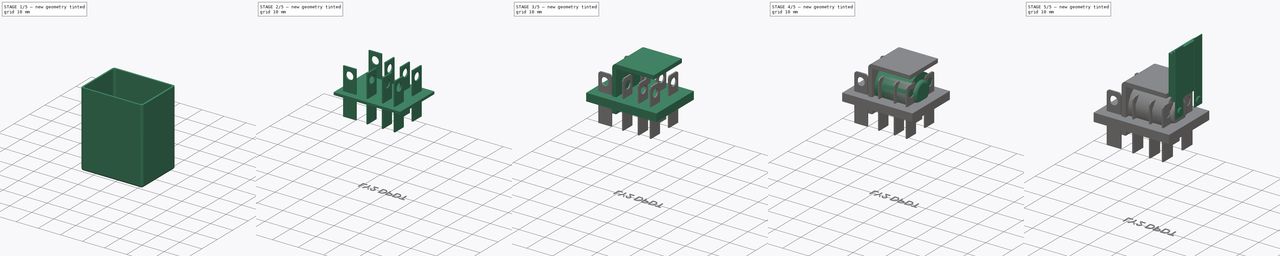
[diagram: build sequence overview — one tinted view per stage of 5, left to right]
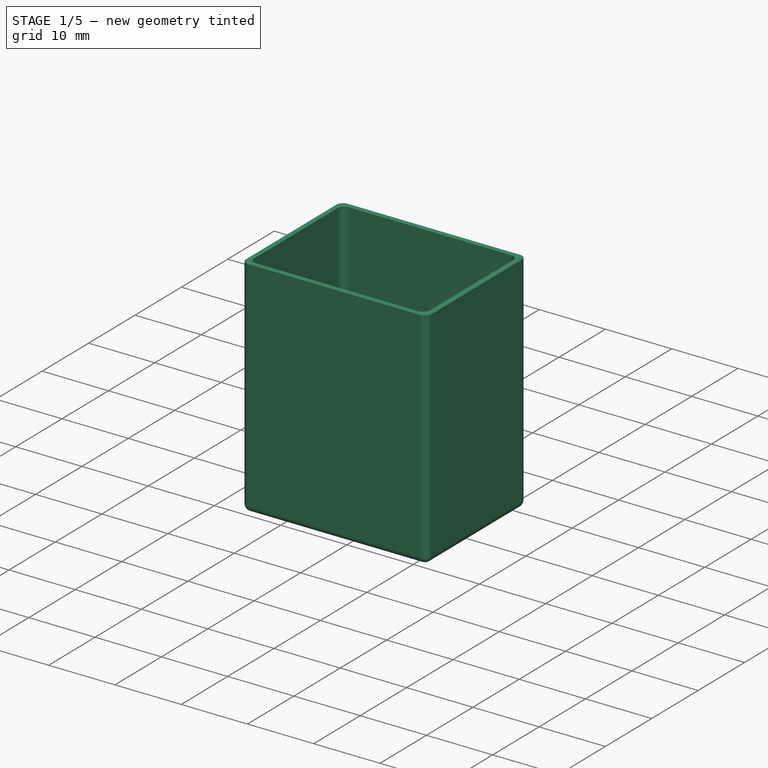
[diagram: stage 1 of 5 — iso view after this stage's code; geometry added in this stage tinted green]
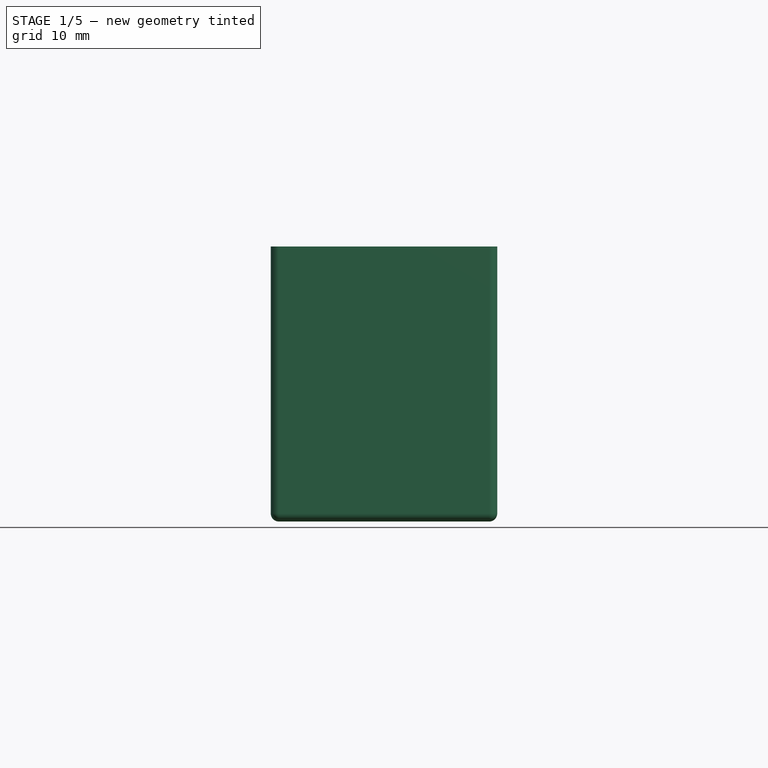
[diagram: stage 1 of 5 — front view after this stage's code; geometry added in this stage tinted green]
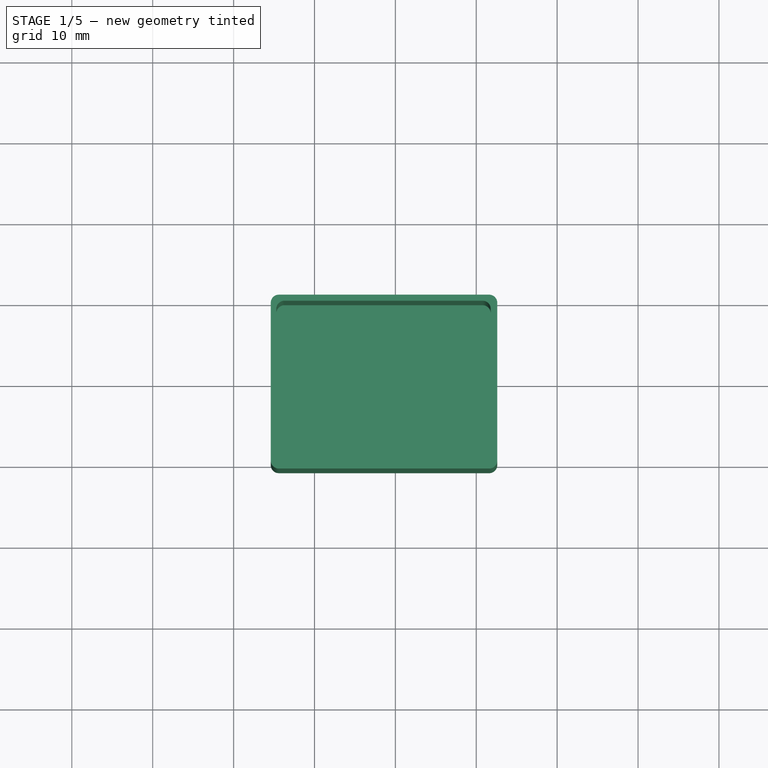
[diagram: stage 1 of 5 — top view after this stage's code; geometry added in this stage tinted green]
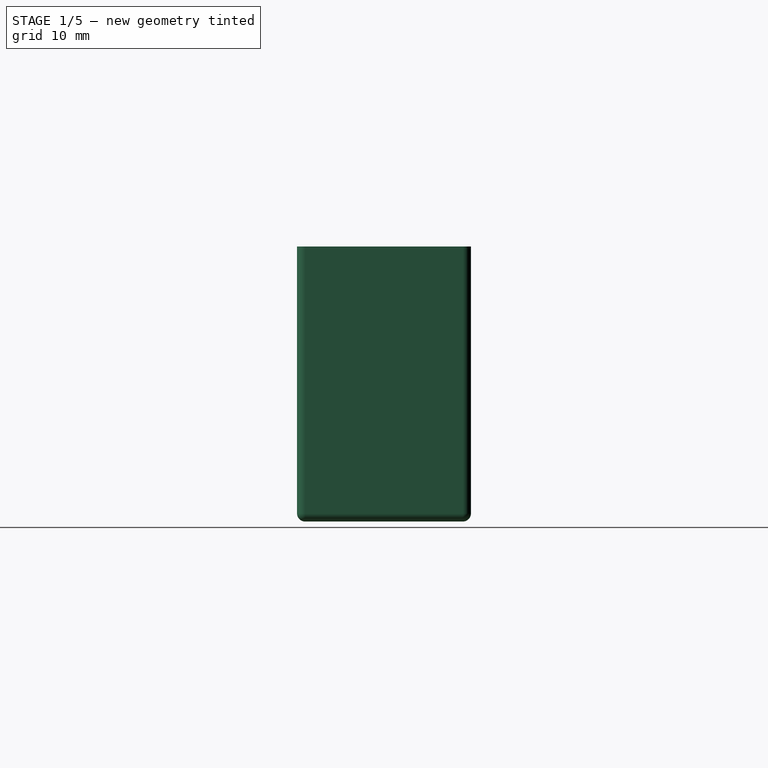
[diagram: stage 1 of 5 — right view after this stage's code; geometry added in this stage tinted green]
FCSTD DOCUMENT  (FreeCAD 0.21R33771 (Git))
Label: Relay_DPDT_LY2
License: All rights reserved
LicenseURL: http://en.wikipedia.org/wiki/All_rights_reserved
objects: Sketcher::SketchObject×16, PartDesign::Pad×11, PartDesign::Fillet×7, PartDesign::Pocket×5, PartDesign::Body×5, PartDesign::ShapeBinder×1, Part::Part2DObjectPython×1, Part::Extrusion×1, App::Part×1
note: 70 computed .brp shape members not serialized (recipe doc carries the construction recipe); baked Part::Feature solids carry a one-line shape summary decoded from their .brp

FEATURE [PartDesign::Body] Body002  label="Bobina"
  Group = -> [ShapeBinder001,Sketch010,Pad005,Sketch011,Pocket005,Sketch012,Pad006,Fillet001,Fillet002,Sketch023,Pad015,Fillet]
  Origin = -> Origin003
  Placement = pos=(-5.74992,0.268518,-11.6) rot=(1,0,0;3.14159rad)
  Tip = -> Fillet
FEATURE [PartDesign::Body] Body004  label="Cover"
  Origin = -> Origin007
  Placement = pos=(0,0,1.9) rot=(0,0,1;0rad)
FEATURE [Sketcher::SketchObject] Sketch024
  FullyConstrained = false
  MapMode = 5
  Support = -> [XY_Plane007]
  sketch-geometry (8):
    g0: LineSegment StartX=-5.40661 StartY=9.75 StartZ=0 EndX=-5.40661 EndY=-9.75 EndZ=0
    g1: LineSegment StartX=-4.40661 StartY=-10.75 StartZ=0 EndX=21.5934 EndY=-10.75 EndZ=0
    g2: LineSegment StartX=22.5934 StartY=9.75 StartZ=0 EndX=22.5934 EndY=-9.75 EndZ=0
    g3: LineSegment StartX=-4.40661 StartY=10.75 StartZ=0 EndX=21.5934 EndY=10.75 EndZ=0
    g4: ArcOfCircle CenterX=-4.40661 CenterY=9.75 CenterZ=0 NormalX=0 NormalY=0 NormalZ=1 AngleXU=0 Radius=1 StartAngle=1.5708 EndAngle=3.14159
    g5: ArcOfCircle CenterX=21.5934 CenterY=9.75 CenterZ=0 NormalX=0 NormalY=0 NormalZ=1 AngleXU=0 Radius=1 StartAngle=1.75125e-11 EndAngle=1.5708
    g6: ArcOfCircle CenterX=21.5934 CenterY=-9.75 CenterZ=0 NormalX=0 NormalY=0 NormalZ=1 AngleXU=0 Radius=1 StartAngle=4.71239 EndAngle=6.28319
    g7: ArcOfCircle CenterX=-4.40661 CenterY=-9.75 CenterZ=0 NormalX=0 NormalY=0 NormalZ=1 AngleXU=0 Radius=1 StartAngle=3.14159 EndAngle=4.71239
  constraints (18):
    c: Vertical(g0)
    c: Horizontal(g1)
    c: Horizontal(g3)
    c: Tangent(g4,g3) = 1.5708
    c: Tangent(g4,g0) = -1.5708
    c: Tangent(g7,g1) = -1.5708
    c: Tangent(g7,g0) = -1.5708
    c: Tangent(g5,g3) = 1.5708
    c: Tangent(g5,g2) = 1.5708
    c: Tangent(g6,g2) = 1.5708
    c: Tangent(g6,g1) = -1.5708
    c: Radius(g5) = 1
    c: Radius(g4) = 1
    c: Radius(g7) = 1
    c: Radius(g6) = 1
    c: DistanceX(g0,g2) = 28
    c: DistanceY(g1,g3) = 21.5
    c: Symmetric(g2,g2,g-1)
FEATURE [PartDesign::Pad] Pad016
  Direction = (0,0,1)
  Length = 34
  Length2 = 10
  Profile = -> Sketch024
  ReferenceAxis = -> Sketch024 [N_Axis]
  Reversed = true
  Type = 0
FEATURE [PartDesign::Fillet] Fillet005
  Base = -> Pad016 [Face10]
  Radius = 1
  SupportTransform = false
  UseAllEdges = false
FEATURE [Sketcher::SketchObject] Sketch025
  FullyConstrained = false
  MapMode = 5
  Support = -> [Fillet005]
  sketch-geometry (8):
    g0: LineSegment StartX=-3.7124 StartY=10 StartZ=0 EndX=20.7876 EndY=10 EndZ=0
    g1: LineSegment StartX=21.7876 StartY=9 StartZ=0 EndX=21.7876 EndY=-9 EndZ=0
    g2: LineSegment StartX=-4.7124 StartY=9 StartZ=0 EndX=-4.7124 EndY=-9 EndZ=0
    g3: LineSegment StartX=-3.7124 StartY=-10 StartZ=0 EndX=20.7876 EndY=-10 EndZ=0
    g4: ArcOfCircle CenterX=-3.7124 CenterY=9 CenterZ=0 NormalX=0 NormalY=0 NormalZ=1 AngleXU=0 Radius=1 StartAngle=1.5708 EndAngle=3.14159
    g5: ArcOfCircle CenterX=20.7876 CenterY=9 CenterZ=0 NormalX=0 NormalY=0 NormalZ=1 AngleXU=0 Radius=1 StartAngle=4e-16 EndAngle=1.5708
    g6: ArcOfCircle CenterX=20.7876 CenterY=-9 CenterZ=0 NormalX=0 NormalY=0 NormalZ=1 AngleXU=0 Radius=1 StartAngle=4.71239 EndAngle=6.28319
    g7: ArcOfCircle CenterX=-3.7124 CenterY=-9 CenterZ=0 NormalX=0 NormalY=0 NormalZ=1 AngleXU=0 Radius=1 StartAngle=3.14159 EndAngle=4.71239
  constraints (18):
    c: Horizontal(g0)
    c: Vertical(g2)
    c: Horizontal(g3)
    c: Tangent(g7,g2) = -1.5708
    c: Tangent(g7,g3) = -1.5708
    c: Tangent(g6,g3) = -1.5708
    c: Tangent(g6,g1) = 1.5708
    c: Tangent(g5,g1) = 1.5708
    c: Tangent(g5,g0) = 1.5708
    c: Tangent(g4,g0) = 1.5708
    c: Tangent(g4,g2) = -1.5708
    c: Radius(g4) = 1
    c: Radius(g5) = 1
    c: Radius(g7) = 1
    c: Radius(g6) = 1
    c: Symmetric(g1,g1,g-1)
    c: DistanceY(g3,g0) = 20
    c: DistanceX(g0,g0) = 24.5
FEATURE [PartDesign::Pocket] Pocket006
  Direction = (0,0,-1)
  Length = 32
  Length2 = 5
  Profile = -> Sketch025
  ReferenceAxis = -> Sketch025 [N_Axis]
  Type = 0
FEATURE [PartDesign::Body] Body  label="Pins"
  Group = -> [Sketch,Sketch021,Pad,Pad014,Sketch022,Pocket,Sketch026,Pocket007,Fillet006]
  Origin = -> Origin
  Placement = pos=(0,0,0.5) rot=(0,0,1;0rad)
  Tip = -> Fillet006
FEATURE [Sketcher::SketchObject] Sketch029
  FullyConstrained = false
  MapMode = 5
  Placement = pos=(0,0,-34) rot=(1,0,0;3.14159rad)
  Support = -> [Pocket006]
  sketch-geometry (4):
    g0: LineSegment StartX=-3.93933 StartY=9.5 StartZ=0 EndX=21.0607 EndY=9.5 EndZ=0
    g1: LineSegment StartX=21.0607 StartY=9.5 StartZ=0 EndX=21.0607 EndY=-9.5 EndZ=0
    g2: LineSegment StartX=21.0607 StartY=-9.5 StartZ=0 EndX=-3.93933 EndY=-9.5 EndZ=0
    g3: LineSegment StartX=-3.93933 StartY=-9.5 StartZ=0 EndX=-3.93933 EndY=9.5 EndZ=0
  constraints (10):
    c: Coincident(g0,g1)
    c: Coincident(g1,g2)
    c: Coincident(g2,g3)
    c: Coincident(g3,g0)
    c: Horizontal(g0)
    c: Horizontal(g2)
    c: Vertical(g3)
    c: DistanceX(g2,g2) = 25
    c: DistanceY(g1,g1) = 19
    c: Symmetric(g0,g1,g-1)
FEATURE [PartDesign::Pocket] Pocket008
  Direction = (0,0,1)
  Length = 0.5
  Length2 = 5
  Profile = -> Sketch029
  ReferenceAxis = -> Sketch029 [N_Axis]
  Type = 0
FEATURE [PartDesign::Fillet] Fillet007
  Base = -> Pocket008 [Face32]
  Radius = 0.3
  SupportTransform = false
  UseAllEdges = false
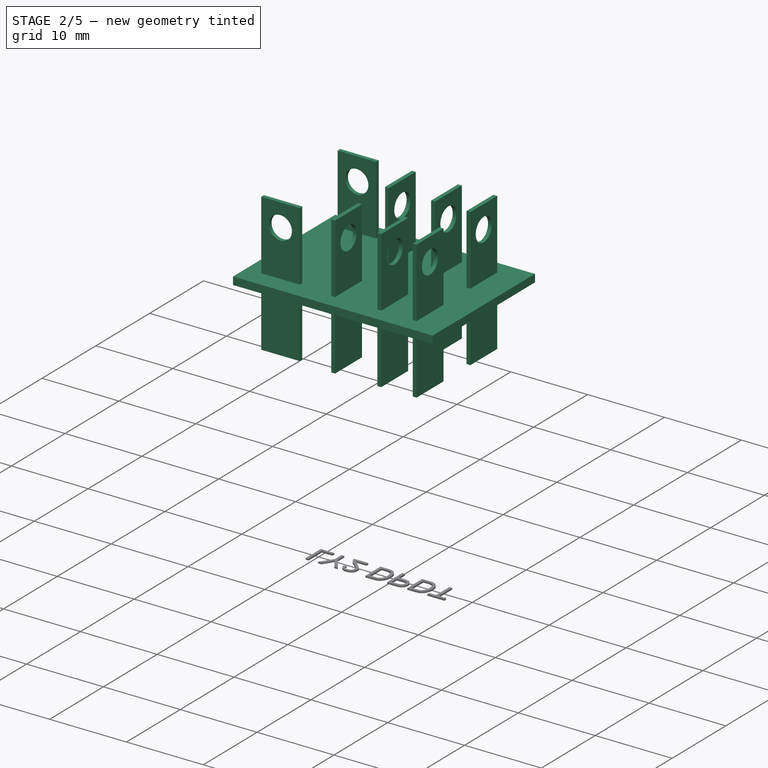
[diagram: stage 2 of 5 — iso view after this stage's code; geometry added in this stage tinted green]
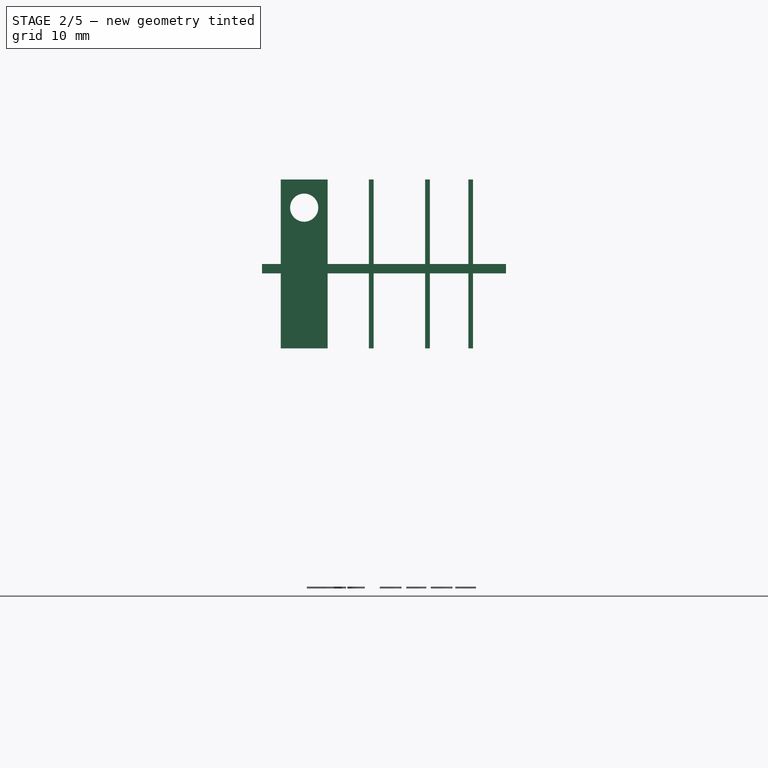
[diagram: stage 2 of 5 — front view after this stage's code; geometry added in this stage tinted green]
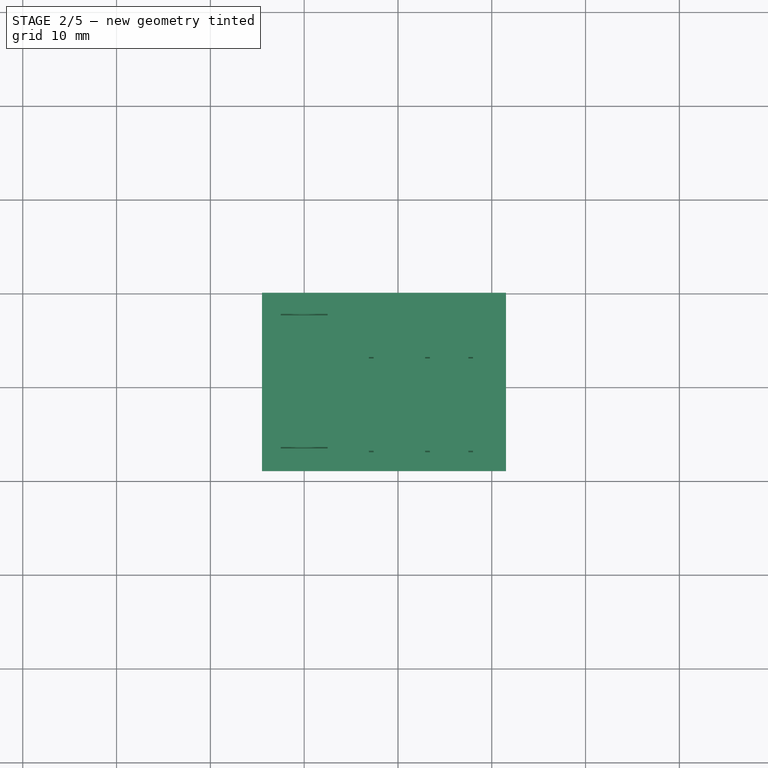
[diagram: stage 2 of 5 — top view after this stage's code; geometry added in this stage tinted green]
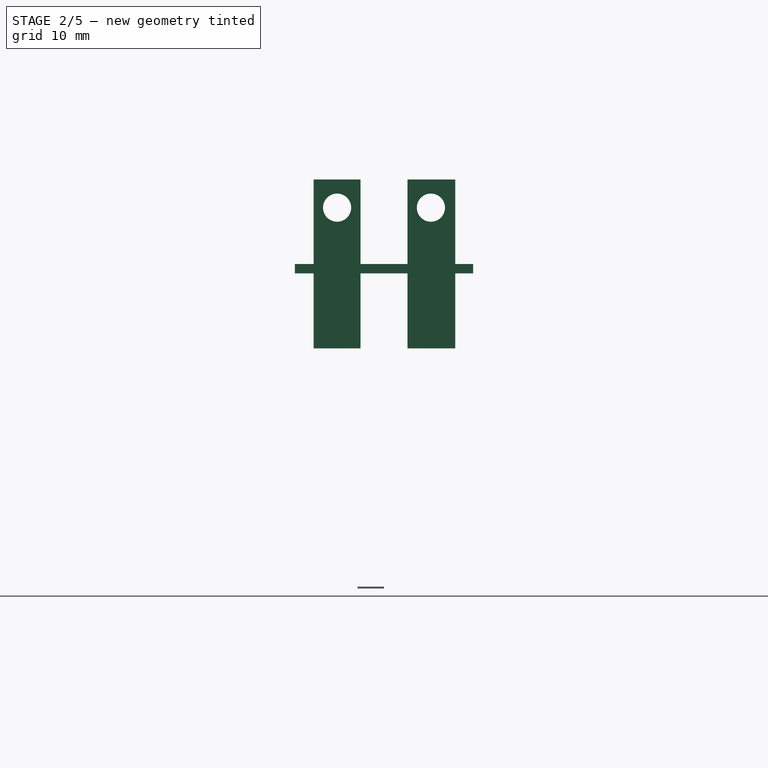
[diagram: stage 2 of 5 — right view after this stage's code; geometry added in this stage tinted green]
FEATURE [PartDesign::Body] Body003  label="Actuador"
  Group = -> [Sketch017,Pad010,Sketch018,Pad011,Sketch019,Pad012,Sketch020,Pad013,Fillet004]
  Origin = -> Origin004
  Placement = pos=(-5.26785,0.127147,3.3) rot=(1,0,0;3.14159rad)
  Tip = -> Fillet004
FEATURE [Sketcher::SketchObject] Sketch021
  FullyConstrained = false
  MapMode = 5
  Support = -> [XY_Plane]
  sketch-geometry (4):
    g0: LineSegment StartX=-4.48888 StartY=9.5 StartZ=0 EndX=21.5111 EndY=9.5 EndZ=0
    g1: LineSegment StartX=21.5111 StartY=9.5 StartZ=0 EndX=21.5111 EndY=-9.5 EndZ=0
    g2: LineSegment StartX=21.5111 StartY=-9.5 StartZ=0 EndX=-4.48888 EndY=-9.5 EndZ=0
    g3: LineSegment StartX=-4.48888 StartY=-9.5 StartZ=0 EndX=-4.48888 EndY=9.5 EndZ=0
  constraints (10):
    c: Coincident(g0,g1)
    c: Coincident(g1,g2)
    c: Coincident(g2,g3)
    c: Coincident(g3,g0)
    c: Horizontal(g0)
    c: Horizontal(g2)
    c: Vertical(g3)
    c: DistanceY(g1,g1) = 19
    c: DistanceX(g0,g0) = 26
    c: Symmetric(g0,g1,g-1)
FEATURE [PartDesign::Pad] Pad
  Direction = (0,0,1)
  Length = 1
  Length2 = 10
  Profile = -> Sketch021
  ReferenceAxis = -> Sketch021 [N_Axis]
  Type = 0
FEATURE [Sketcher::SketchObject] Sketch
  FullyConstrained = true
  MapMode = 5
  Placement = pos=(0,0,1) rot=(0,0,1;0rad)
  Support = -> [Pad]
  sketch-geometry (32):
    g0: LineSegment StartX=-2.5 StartY=7.6 StartZ=0 EndX=2.5 EndY=7.6 EndZ=0
    g1: LineSegment StartX=2.5 StartY=7.6 StartZ=0 EndX=2.5 EndY=7.1 EndZ=0
    g2: LineSegment StartX=2.5 StartY=7.1 StartZ=0 EndX=-2.5 EndY=7.1 EndZ=0
    g3: LineSegment StartX=-2.5 StartY=7.1 StartZ=0 EndX=-2.5 EndY=7.6 EndZ=0
    g4: LineSegment StartX=-2.5 StartY=-7.1 StartZ=0 EndX=2.5 EndY=-7.1 EndZ=0
    g5: LineSegment StartX=2.5 StartY=-7.1 StartZ=0 EndX=2.5 EndY=-6.6 EndZ=0
    g6: LineSegment StartX=2.5 StartY=-6.6 StartZ=0 EndX=-2.5 EndY=-6.6 EndZ=0
    g7: LineSegment StartX=-2.5 StartY=-7.1 StartZ=0 EndX=-2.5 EndY=-6.6 EndZ=0
    g8: LineSegment StartX=6.9 StartY=7.5 StartZ=0 EndX=7.4 EndY=7.5 EndZ=0
    g9: LineSegment StartX=7.4 StartY=7.5 StartZ=0 EndX=7.4 EndY=2.5 EndZ=0
    g10: LineSegment StartX=7.4 StartY=2.5 StartZ=0 EndX=6.9 EndY=2.5 EndZ=0
    g11: LineSegment StartX=6.9 StartY=2.5 StartZ=0 EndX=6.9 EndY=7.5 EndZ=0
    g12: LineSegment StartX=12.9 StartY=7.5 StartZ=0 EndX=13.4 EndY=7.5 EndZ=0
    g13: LineSegment StartX=13.4 StartY=7.5 StartZ=0 EndX=13.4 EndY=2.5 EndZ=0
    g14: LineSegment StartX=13.4 StartY=2.5 StartZ=0 EndX=12.9 EndY=2.5 EndZ=0
    g15: LineSegment StartX=12.9 StartY=2.5 StartZ=0 EndX=12.9 EndY=7.5 EndZ=0
    g16: LineSegment StartX=18 StartY=7.5 StartZ=0 EndX=17.5 EndY=7.5 EndZ=0
    g17: LineSegment StartX=17.5 StartY=7.5 StartZ=0 EndX=17.5 EndY=2.5 EndZ=0
    g18: LineSegment StartX=17.5 StartY=2.5 StartZ=0 EndX=18 EndY=2.5 EndZ=0
    g19: LineSegment StartX=18 StartY=2.5 StartZ=0 EndX=18 EndY=7.5 EndZ=0
    g20: LineSegment StartX=6.9 StartY=-2.5 StartZ=0 EndX=7.4 EndY=-2.5 EndZ=0
    g21: LineSegment StartX=7.4 StartY=-2.5 StartZ=0 EndX=7.4 EndY=-7.5 EndZ=0
    g22: LineSegment StartX=7.4 StartY=-7.5 StartZ=0 EndX=6.9 EndY=-7.5 EndZ=0
    g23: LineSegment StartX=6.9 StartY=-7.5 StartZ=0 EndX=6.9 EndY=-2.5 EndZ=0
    g24: LineSegment StartX=12.9 StartY=-2.5 StartZ=0 EndX=13.4 EndY=-2.5 EndZ=0
    g25: LineSegment StartX=13.4 StartY=-2.5 StartZ=0 EndX=13.4 EndY=-7.5 EndZ=0
    g26: LineSegment StartX=13.4 StartY=-7.5 StartZ=0 EndX=12.9 EndY=-7.5 EndZ=0
    g27: LineSegment StartX=12.9 StartY=-7.5 StartZ=0 EndX=12.9 EndY=-2.5 EndZ=0
    g28: LineSegment StartX=17.5 StartY=-2.5 StartZ=0 EndX=18 EndY=-2.5 EndZ=0
    g29: LineSegment StartX=18 StartY=-2.5 StartZ=0 EndX=18 EndY=-7.5 EndZ=0
    g30: LineSegment StartX=18 StartY=-7.5 StartZ=0 EndX=17.5 EndY=-7.5 EndZ=0
    g31: LineSegment StartX=17.5 StartY=-7.5 StartZ=0 EndX=17.5 EndY=-2.5 EndZ=0
  constraints (96):
    c: Horizontal(g0)
    c: Coincident(g1,g0)
    c: Coincident(g2,g1)
    c: Horizontal(g2)
    c: Coincident(g3,g0)
    c: Vertical(g3)
    c: Vertical(g1)
    c: DistanceX(g0,g0) = 5
    c: Coincident(g2,g3)
    c: DistanceY(g1,g1) = 0.5
    c: DistanceX(g2) = -2.5
    c: DistanceY(g2) = 7.1
    c: Horizontal(g4)
    c: Coincident(g5,g4)
    c: Vertical(g5)
    c: Coincident(g6,g5)
    c: Horizontal(g6)
    c: Coincident(g7,g4)
    c: Coincident(g7,g6)
    c: Vertical(g7)
    c: Equal(g2,g4)
    c: Equal(g7,g3)
    c: DistanceX(g4) = -2.5
    c: DistanceY(g4) = -7.1
    c: Coincident(g9,g10)
    c: Coincident(g10,g11)
    c: Horizontal(g8)
    c: Horizontal(g10)
    c: Vertical(g9)
    c: Vertical(g11)
    c: Coincident(g12,g13)
    c: Coincident(g13,g14)
    c: Coincident(g14,g15)
    c: Coincident(g15,g12)
    c: Horizontal(g12)
    c: Horizontal(g14)
    c: Vertical(g13)
    c: Vertical(g15)
    c: Coincident(g16,g17)
    c: Coincident(g17,g18)
    c: Coincident(g18,g19)
    c: Coincident(g19,g16)
    c: Horizontal(g16)
    c: Horizontal(g18)
    c: Vertical(g17)
    c: Vertical(g19)
    c: Coincident(g20,g21)
    c: Coincident(g21,g22)
    c: Coincident(g22,g23)
    c: Coincident(g23,g20)
    c: Horizontal(g20)
    c: Horizontal(g22)
    c: Vertical(g21)
    c: Vertical(g23)
    c: Coincident(g24,g25)
    c: Coincident(g25,g26)
    c: Coincident(g26,g27)
    c: Coincident(g27,g24)
    c: Horizontal(g24)
    c: Horizontal(g26)
    c: Vertical(g25)
    c: Vertical(g27)
    c: Coincident(g28,g29)
    c: Coincident(g29,g30)
    c: Coincident(g30,g31)
    c: Coincident(g31,g28)
    c: Horizontal(g28)
    c: Horizontal(g30)
    c: Vertical(g29)
    c: Vertical(g31)
    c: Equal(g2,g11)
    c: Equal(g2,g15)
    c: Equal(g2,g19)
    c: Equal(g2,g23)
    c: Equal(g2,g27)
    c: Equal(g2,g31)
    c: Equal(g3,g8)
    c: Equal(g3,g12)
    c: Equal(g3,g16)
    c: Equal(g3,g20)
    c: Equal(g3,g24)
    c: Equal(g3,g28)
    c: DistanceX(g8) = 6.9
    c: DistanceY(g8) = 7.5
    c: Coincident(g11,g8)
    c: Coincident(g9,g8)
    c: DistanceX(g22) = 6.9
    c: DistanceY(g22) = -7.5
    c: DistanceX(g8,g12) = 6
    c: DistanceY(g12) = 7.5
    c: DistanceX(g12,g16) = 4.6
    c: DistanceY(g16) = 7.5
    c: DistanceY(g26) = -7.5
    c: DistanceX(g22,g26) = 6
    c: DistanceY(g30) = -7.5
    c: DistanceX(g26,g30) = 4.6
FEATURE [PartDesign::Pad] Pad014
  BaseFeature = -> Pad
  Direction = (0,0,1)
  Length = 18
  Length2 = 10
  Midplane = true
  Profile = -> Sketch
  ReferenceAxis = -> Sketch [N_Axis]
  Type = 0
FEATURE [Sketcher::SketchObject] Sketch022
  FullyConstrained = true
  MapMode = 5
  Placement = pos=(18,0,0) rot=(0.57735,0.57735,0.57735;2.0944rad)
  sketch-geometry (2):
    g0: Circle CenterX=-5 CenterY=7 CenterZ=0 NormalX=0 NormalY=0 NormalZ=1 AngleXU=0 Radius=1.5
    g1: Circle CenterX=5 CenterY=7 CenterZ=0 NormalX=0 NormalY=0 NormalZ=1 AngleXU=0 Radius=1.5
  constraints (5):
    c: Radius(g1) = 1.5
    c: Radius(g0) = 1.5
    c: Symmetric(g0,g1,g-2)
    c: DistanceX(g0) = -5
    c: DistanceY(g0) = 7
FEATURE [PartDesign::Pocket] Pocket
  BaseFeature = -> Pad014
  Direction = (-1,0,0)
  Length = 20
  Length2 = 5
  Profile = -> Sketch022
  ReferenceAxis = -> Sketch022 [N_Axis]
  Type = 0
FEATURE [Sketcher::SketchObject] Sketch026
  FullyConstrained = true
  MapMode = 5
  Placement = pos=(0,-7.1,0) rot=(1,0,0;1.5708rad)
  Support = -> [Pocket]
  sketch-geometry (1):
    g0: Circle CenterX=0 CenterY=7 CenterZ=0 NormalX=0 NormalY=0 NormalZ=1 AngleXU=0 Radius=1.5
  constraints (3):
    c: PointOnObject(g0,g-2)
    c: Radius(g0) = 1.5
    c: DistanceY(g0) = 7
FEATURE [PartDesign::Pocket] Pocket007
  BaseFeature = -> Pocket
  Direction = (0,1,-2e-16)
  Length = 20
  Length2 = 5
  Profile = -> Sketch026
  ReferenceAxis = -> Sketch026 [N_Axis]
  Type = 0
FEATURE [Part::Part2DObjectPython] ShapeString  # Draft 2D object (typed FeaturePython)
  FontFile = <path>
  MakeFace = true
  MapMode = 5
  Placement = pos=(0,0,-33.5) rot=(1,0,0;3.14159rad)
  Size = 3
  String = LY2 DPDT
  Support = -> [Fillet007]
  Tracking = 0
FEATURE [Part::Extrusion] Extrude
  Base = -> ShapeString
  Dir = (0,0,-1)
  DirMode = 2
  FaceMakerClass = Part::FaceMakerBullseye
  LengthFwd = 0.2
  LengthRev = 0
  Placement = pos=(0,0,0.1) rot=(0,0,1;0rad)
  Solid = false
  Symmetric = false
FEATURE [App::Part] Part001  label="RelayLY2"
  Group = -> [Body002,Body003,Body,Body004,Body005,ShapeString,Sketch024,Pad016,Fillet005,Sketch025,Pocket006,Pocket008,Sketch029,Fillet007,Extrude]
  Origin = -> Origin006
  Placement = pos=(0,0,0) rot=(1,0,0;3.14159rad)
note: 1 file-system path scrubbed to <path> (originals preserved in the JSON sidecar)
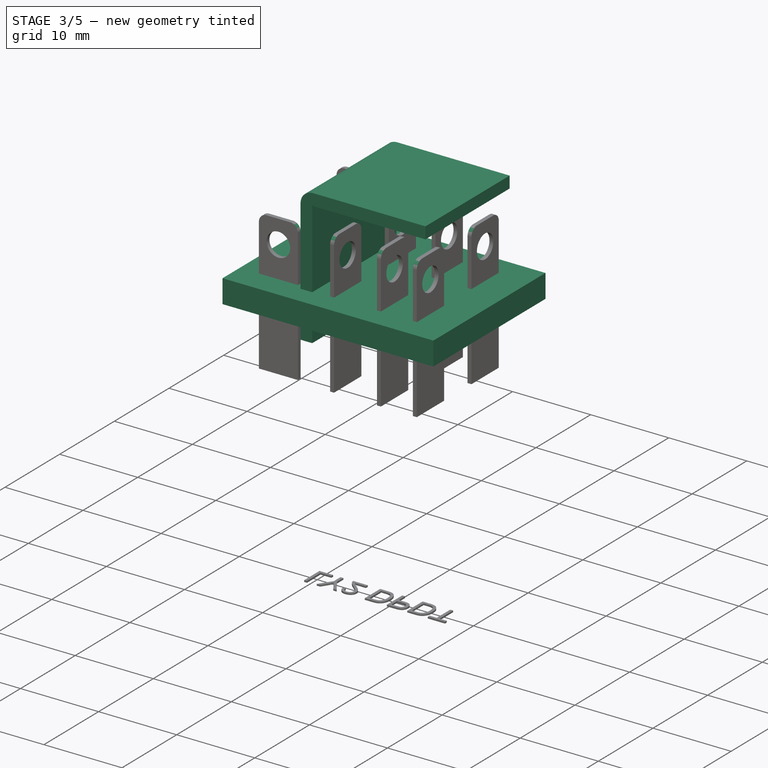
[diagram: stage 3 of 5 — iso view after this stage's code; geometry added in this stage tinted green]
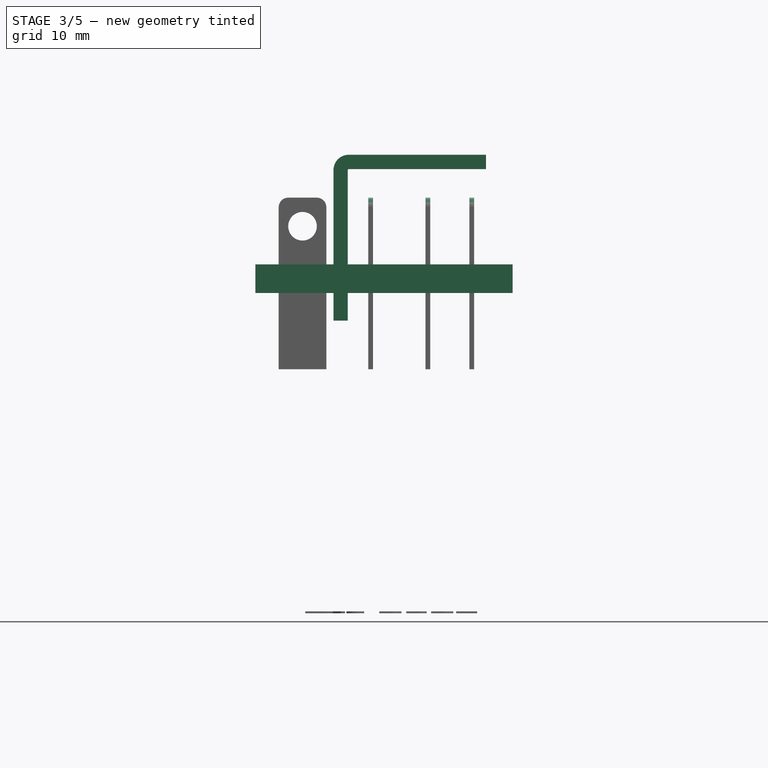
[diagram: stage 3 of 5 — front view after this stage's code; geometry added in this stage tinted green]
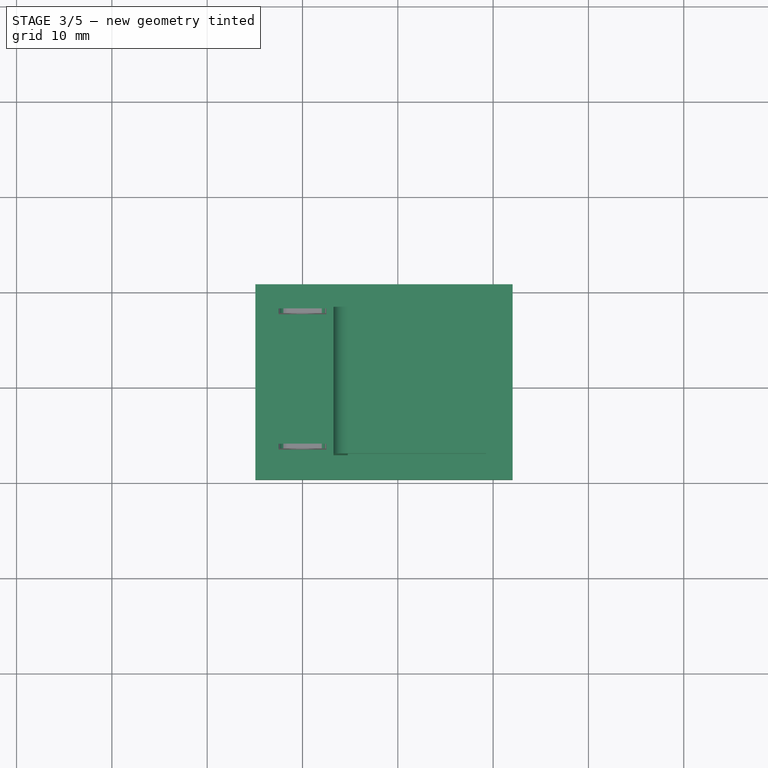
[diagram: stage 3 of 5 — top view after this stage's code; geometry added in this stage tinted green]
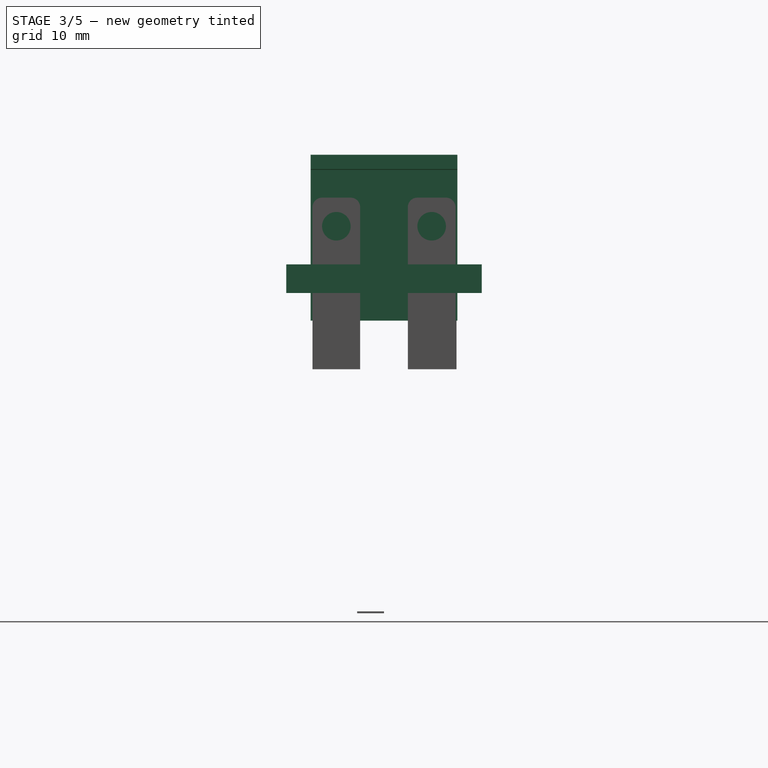
[diagram: stage 3 of 5 — right view after this stage's code; geometry added in this stage tinted green]
FEATURE [Sketcher::SketchObject] Sketch010
  FullyConstrained = false
  MapMode = 5
  Placement = pos=(0,0,0) rot=(1,0,0;1.5708rad)
  Support = -> [XZ_Plane003]
  sketch-geometry (8):
    g0: LineSegment StartX=3.25 StartY=-7.9 StartZ=0 EndX=3.25 EndY=12.9 EndZ=0
    g1: LineSegment StartX=4.85 StartY=14.5 StartZ=0 EndX=19.25 EndY=14.5 EndZ=0
    g2: LineSegment StartX=19.25 StartY=14.5 StartZ=0 EndX=19.25 EndY=13 EndZ=0
    g3: LineSegment StartX=19.25 StartY=13 StartZ=0 EndX=4.85 EndY=13 EndZ=0
    g4: LineSegment StartX=4.75 StartY=12.9 StartZ=0 EndX=4.75 EndY=-7.9 EndZ=0
    g5: LineSegment StartX=4.75 StartY=-7.9 StartZ=0 EndX=3.25 EndY=-7.9 EndZ=0
    g6: ArcOfCircle CenterX=4.85 CenterY=12.9 CenterZ=0 NormalX=0 NormalY=0 NormalZ=1 AngleXU=0 Radius=1.6 StartAngle=1.5708 EndAngle=3.14159
    g7: ArcOfCircle CenterX=4.85 CenterY=12.9 CenterZ=0 NormalX=0 NormalY=0 NormalZ=1 AngleXU=0 Radius=0.1 StartAngle=1.5708 EndAngle=3.14159
  constraints (19):
    c: Vertical(g0)
    c: Horizontal(g1)
    c: Coincident(g1,g2)
    c: Coincident(g2,g3)
    c: Horizontal(g3)
    c: Vertical(g4)
    c: Coincident(g4,g5)
    c: Coincident(g5,g0)
    c: Horizontal(g5)
    c: DistanceX(g5,g5) = 1.5
    c: Tangent(g1,g6) = 1.5708
    c: Tangent(g0,g6) = 1.5708
    c: Tangent(g3,g7) = -1.5708
    c: Tangent(g4,g7) = -1.5708
    c: Vertical(g2)
    c: DistanceY(g2,g2) = 1.5
    c: Vertical(g3,g1)
    c: DistanceX(g0,g1) = 16
    c: Radius(g6) = 1.6
FEATURE [PartDesign::Pad] Pad005
  Direction = (0,-1,-2e-16)
  Length = 15.4
  Length2 = 10
  Midplane = true
  Placement = pos=(0,0,0) rot=(1,0,0;1.5708rad)
  Profile = -> Sketch010
  ReferenceAxis = -> Sketch010 [N_Axis]
  Refine = true
  Type = 0
FEATURE [Sketcher::SketchObject] Sketch011
  ExternalGeometry = -> [Pad005]
  FullyConstrained = true
  MapMode = 5
  Placement = pos=(3.25,0,0) rot=(0.707107,0,-0.707107;3.14159rad)
  Support = -> [Pad005]
  sketch-geometry (4):
    g0: LineSegment StartX=7.9 StartY=8 StartZ=0 EndX=2.9 EndY=8 EndZ=0
    g1: LineSegment StartX=2.9 StartY=8 StartZ=0 EndX=2.9 EndY=-8 EndZ=0
    g2: LineSegment StartX=2.9 StartY=-8 StartZ=0 EndX=7.9 EndY=-8 EndZ=0
    g3: LineSegment StartX=7.9 StartY=-8 StartZ=0 EndX=7.9 EndY=8 EndZ=0
  constraints (11):
    c: Coincident(g0,g1)
    c: Coincident(g1,g2)
    c: Coincident(g2,g3)
    c: Coincident(g3,g0)
    c: Horizontal(g0)
    c: Horizontal(g2)
    c: Vertical(g1)
    c: PointOnObject(g0,g-3)
    c: Symmetric(g0,g2,g-1)
    c: DistanceY(g3,g3) = 16
    c: DistanceX(g0,g0) = 5
FEATURE [PartDesign::Pocket] Pocket005
  BaseFeature = -> Pad005
  Direction = (1,0,2e-16)
  Length = 5
  Length2 = 5
  Placement = pos=(0,0,0) rot=(1,0,0;1.5708rad)
  Profile = -> Sketch011
  ReferenceAxis = -> Sketch011 [N_Axis]
  Refine = true
  Type = 0
FEATURE [Sketcher::SketchObject] Sketch028
  FullyConstrained = false
  MapMode = 5
  Support = -> [XY_Plane008]
  sketch-geometry (4):
    g0: LineSegment StartX=-4.95073 StartY=10.25 StartZ=0 EndX=22.0493 EndY=10.25 EndZ=0
    g1: LineSegment StartX=22.0493 StartY=10.25 StartZ=0 EndX=22.0493 EndY=-10.25 EndZ=0
    g2: LineSegment StartX=22.0493 StartY=-10.25 StartZ=0 EndX=-4.95073 EndY=-10.25 EndZ=0
    g3: LineSegment StartX=-4.95073 StartY=-10.25 StartZ=0 EndX=-4.95073 EndY=10.25 EndZ=0
  constraints (10):
    c: Coincident(g0,g1)
    c: Coincident(g1,g2)
    c: Coincident(g2,g3)
    c: Coincident(g3,g0)
    c: Horizontal(g0)
    c: Horizontal(g2)
    c: Vertical(g3)
    c: DistanceY(g1,g1) = 20.5
    c: DistanceX(g0,g0) = 27
    c: Symmetric(g0,g1,g-1)
FEATURE [PartDesign::Pad] Pad017
  Direction = (0,0,1)
  Length = 3
  Length2 = 10
  Profile = -> Sketch028
  ReferenceAxis = -> Sketch028 [N_Axis]
  Type = 0
FEATURE [PartDesign::Body] Body005  label="Base"
  Group = -> [Sketch028,Pad017]
  Origin = -> Origin008
  Tip = -> Pad017
FEATURE [PartDesign::Fillet] Fillet006
  Base = -> Pocket007 [Edge147,Edge142,Edge157,Edge152,Edge192,Edge197,Edge190,Edge185,Edge167,Edge162,Edge207,Edge202,Edge177,Edge172,Edge216,Edge220]
  BaseFeature = -> Pocket007
  Radius = 1
  SupportTransform = false
  UseAllEdges = false
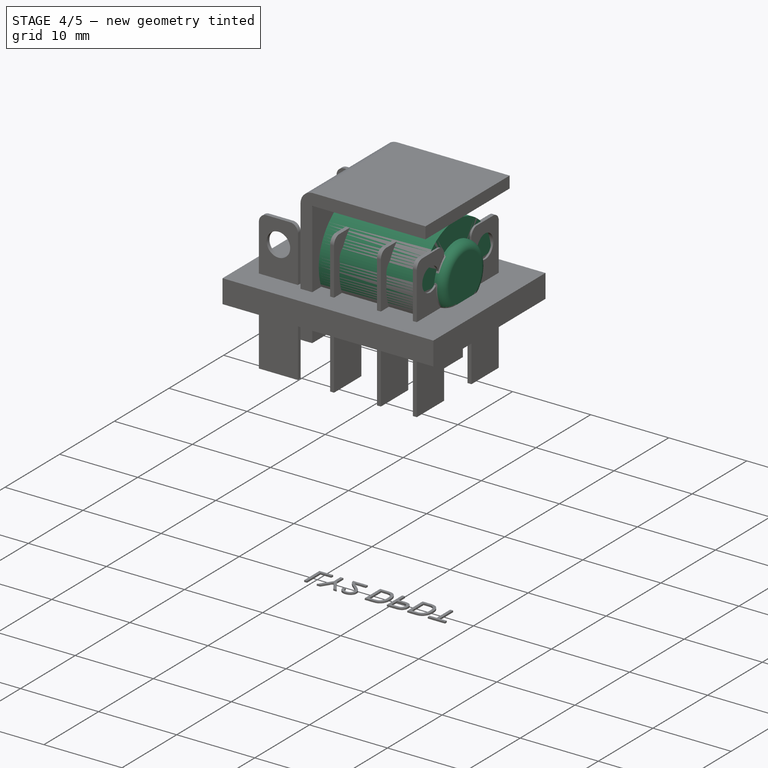
[diagram: stage 4 of 5 — iso view after this stage's code; geometry added in this stage tinted green]
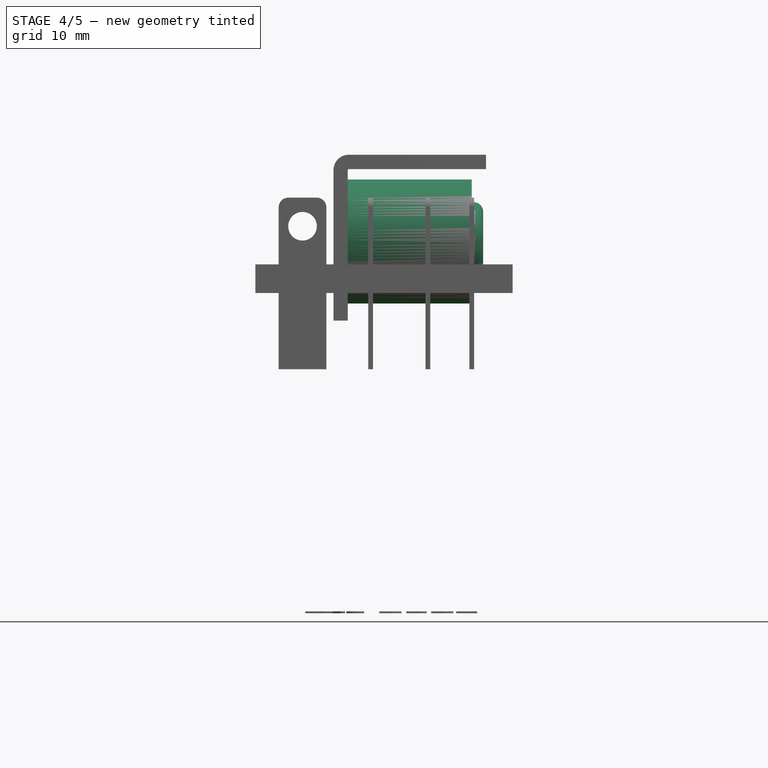
[diagram: stage 4 of 5 — front view after this stage's code; geometry added in this stage tinted green]
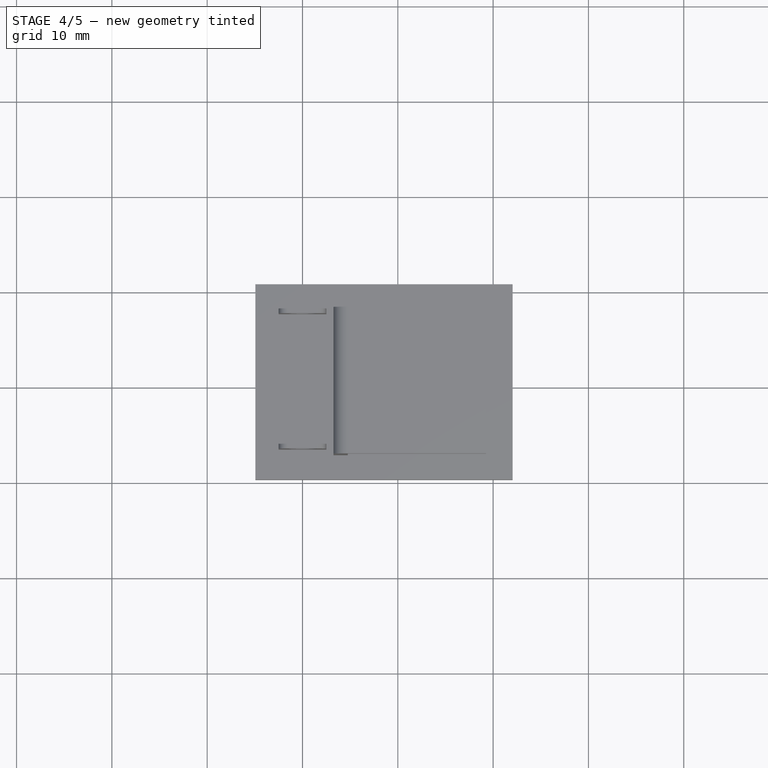
[diagram: stage 4 of 5 — top view after this stage's code; geometry added in this stage tinted green]
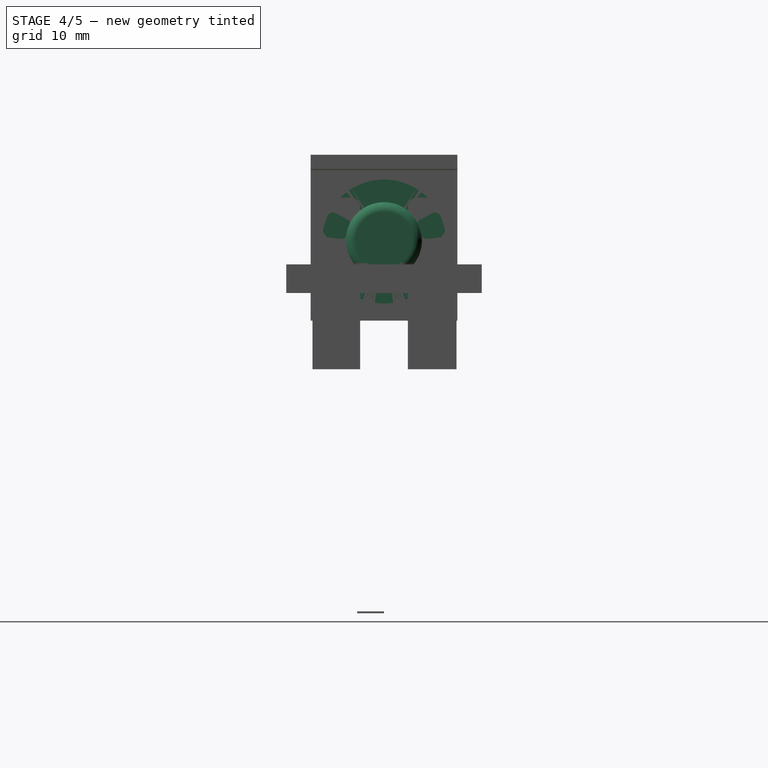
[diagram: stage 4 of 5 — right view after this stage's code; geometry added in this stage tinted green]
FEATURE [Sketcher::SketchObject] Sketch012
  FullyConstrained = false
  MapMode = 5
  Placement = pos=(4.75,0,0) rot=(0.707107,0,0.707107;3.14159rad)
  Support = -> [Pocket005]
  sketch-geometry (1):
    g0: Circle CenterX=5.4 CenterY=0 CenterZ=0 NormalX=0 NormalY=0 NormalZ=1 AngleXU=0 Radius=6.5
  constraints (2):
    c: PointOnObject(g0,g-1)
    c: Diameter(g0) = 13
FEATURE [PartDesign::Pad] Pad006
  BaseFeature = -> Pocket005
  Direction = (1,0,-2e-16)
  Length = 13
  Length2 = 10
  Placement = pos=(0,0,0) rot=(1,0,0;1.5708rad)
  Profile = -> Sketch012
  ReferenceAxis = -> Sketch012 [N_Axis]
  Refine = true
  Type = 0
FEATURE [PartDesign::Fillet] Fillet001
  Base = -> Pad006
  BaseFeature = -> Pad006
  Placement = pos=(0,0,0) rot=(1,0,0;1.5708rad)
  Radius = 0.5
  Refine = true
  SupportTransform = false
  UseAllEdges = false
FEATURE [PartDesign::Fillet] Fillet002
  Base = -> Fillet001
  BaseFeature = -> Fillet001
  Placement = pos=(0,0,0) rot=(1,0,0;1.5708rad)
  Radius = 1
  Refine = true
  SupportTransform = false
  UseAllEdges = false
FEATURE [Sketcher::SketchObject] Sketch023
  FullyConstrained = false
  MapMode = 5
  Placement = pos=(17.75,0,-3.2e-15) rot=(0.707107,0,0.707107;3.14159rad)
  Support = -> [Fillet002]
  sketch-geometry (1):
    g0: Circle CenterX=5.52607 CenterY=0 CenterZ=0 NormalX=0 NormalY=0 NormalZ=1 AngleXU=0 Radius=4
  constraints (2):
    c: PointOnObject(g0,g-1)
    c: Radius(g0) = 4
FEATURE [PartDesign::Pad] Pad015
  BaseFeature = -> Fillet002
  Direction = (1,0,-2e-16)
  Length = 1.2
  Length2 = 10
  Placement = pos=(0,0,0) rot=(1,0,0;1.5708rad)
  Profile = -> Sketch023
  ReferenceAxis = -> Sketch023 [N_Axis]
  Type = 0
FEATURE [PartDesign::Fillet] Fillet
  Base = -> Pad015 [Face14]
  BaseFeature = -> Pad015
  Placement = pos=(0,0,0) rot=(1,0,0;1.5708rad)
  Radius = 1
  SupportTransform = false
  UseAllEdges = false
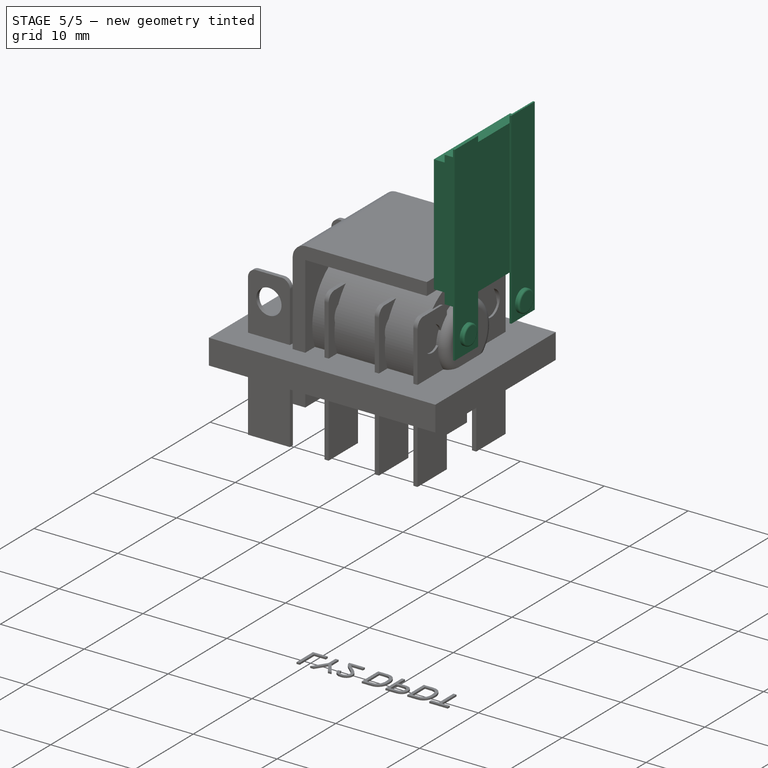
[diagram: stage 5 of 5 — iso view after this stage's code; geometry added in this stage tinted green]
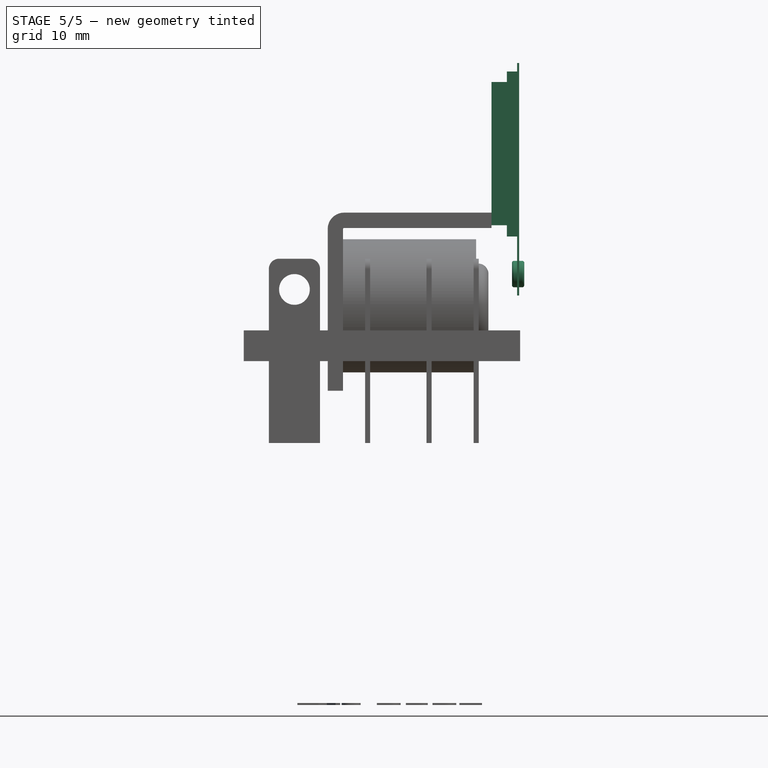
[diagram: stage 5 of 5 — front view after this stage's code; geometry added in this stage tinted green]
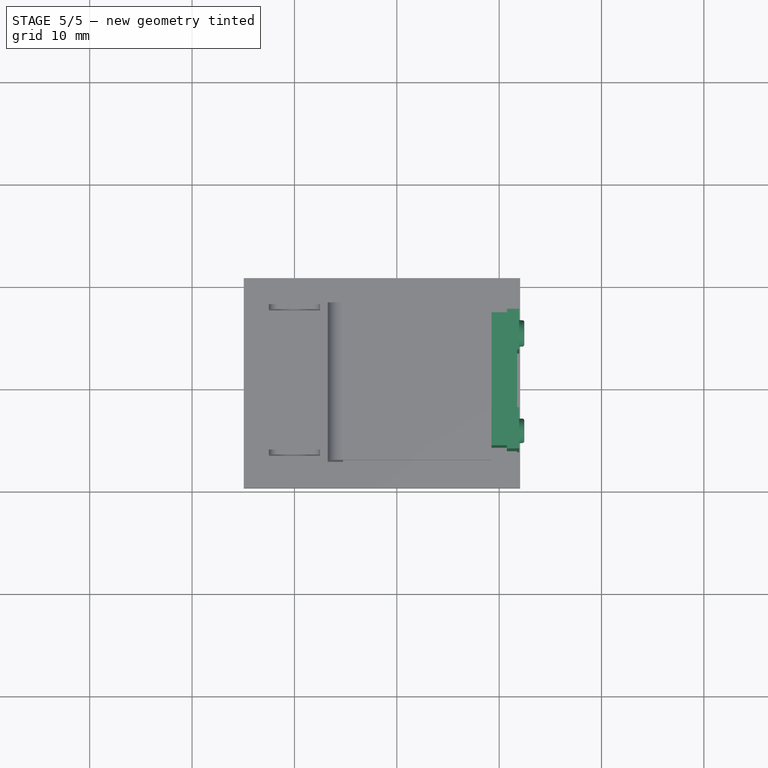
[diagram: stage 5 of 5 — top view after this stage's code; geometry added in this stage tinted green]
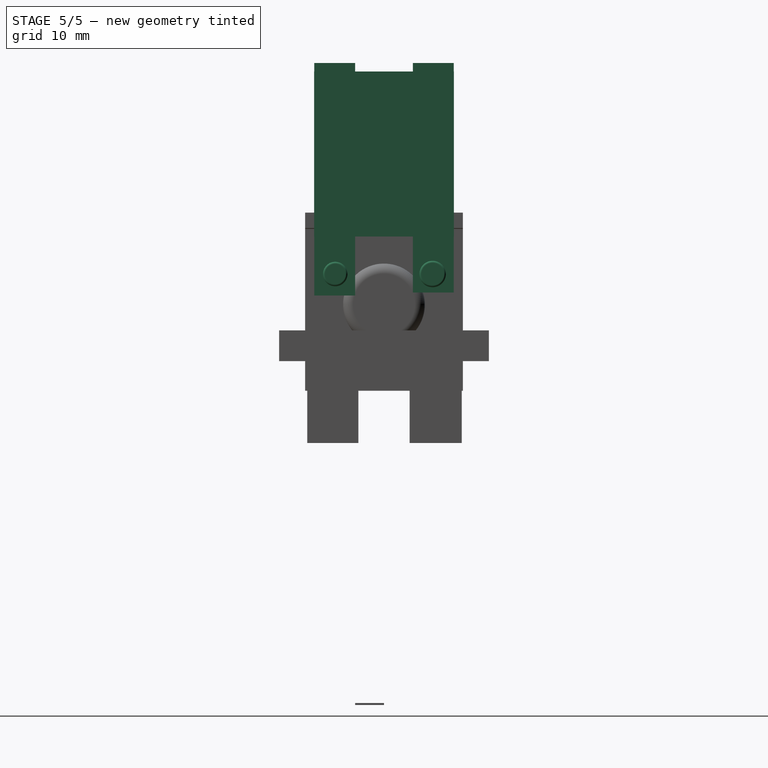
[diagram: stage 5 of 5 — right view after this stage's code; geometry added in this stage tinted green]
FEATURE [PartDesign::ShapeBinder] ShapeBinder001
  TraceSupport = false
FEATURE [Sketcher::SketchObject] Sketch017
  FullyConstrained = false
  MapMode = 5
  Placement = pos=(19.25,0,0) rot=(0.707107,0,0.707107;3.14159rad)
  sketch-geometry (4):
    g0: LineSegment StartX=27.2703 StartY=6.5 StartZ=0 EndX=13.2703 EndY=6.5 EndZ=0
    g1: LineSegment StartX=13.2703 StartY=6.5 StartZ=0 EndX=13.2703 EndY=-6.5 EndZ=0
    g2: LineSegment StartX=13.2703 StartY=-6.5 StartZ=0 EndX=27.2703 EndY=-6.5 EndZ=0
    g3: LineSegment StartX=27.2703 StartY=-6.5 StartZ=0 EndX=27.2703 EndY=6.5 EndZ=0
  constraints (10):
    c: Coincident(g0,g1)
    c: Coincident(g1,g2)
    c: Coincident(g2,g3)
    c: Coincident(g3,g0)
    c: Horizontal(g0)
    c: Horizontal(g2)
    c: Vertical(g1)
    c: Symmetric(g0,g2,g-1)
    c: DistanceX(g0,g0) = 14
    c: DistanceY(g3,g3) = 13
FEATURE [PartDesign::Pad] Pad010
  Direction = (1,0,-2e-16)
  Length = 1.5
  Length2 = 10
  Placement = pos=(19.25,0,0) rot=(0.707107,0,0.707107;3.14159rad)
  Profile = -> Sketch017
  ReferenceAxis = -> Sketch017 [N_Axis]
  Refine = true
  Type = 0
FEATURE [Sketcher::SketchObject] Sketch018
  FullyConstrained = false
  MapMode = 5
  Placement = pos=(20.75,0,-7e-16) rot=(0.707107,0,0.707107;3.14159rad)
  Support = -> [Pad010]
  sketch-geometry (4):
    g0: LineSegment StartX=28.289 StartY=6.82168 StartZ=0 EndX=12.1726 EndY=6.82168 EndZ=0
    g1: LineSegment StartX=12.1726 StartY=6.82168 StartZ=0 EndX=12.1726 EndY=-6.82168 EndZ=0
    g2: LineSegment StartX=12.1726 StartY=-6.82168 StartZ=0 EndX=28.289 EndY=-6.82168 EndZ=0
    g3: LineSegment StartX=28.289 StartY=-6.82168 StartZ=0 EndX=28.289 EndY=6.82168 EndZ=0
  constraints (8):
    c: Coincident(g0,g1)
    c: Coincident(g1,g2)
    c: Coincident(g2,g3)
    c: Coincident(g3,g0)
    c: Horizontal(g0)
    c: Horizontal(g2)
    c: Vertical(g1)
    c: Symmetric(g2,g0,g-1)
FEATURE [PartDesign::Pad] Pad011
  BaseFeature = -> Pad010
  Direction = (1,-1e-16,-2e-16)
  Length = 1
  Length2 = 10
  Placement = pos=(19.25,0,0) rot=(0.707107,0,0.707107;3.14159rad)
  Profile = -> Sketch018
  ReferenceAxis = -> Sketch018 [N_Axis]
  Refine = true
  Type = 0
FEATURE [Sketcher::SketchObject] Sketch019
  FullyConstrained = false
  MapMode = 5
  Placement = pos=(21.75,0,-1.1e-15) rot=(0.707107,0,0.707107;3.14159rad)
  Support = -> [Pad011]
  sketch-geometry (8):
    g0: LineSegment StartX=6.40177 StartY=6.81797 StartZ=0 EndX=29.1245 EndY=6.81797 EndZ=0
    g1: LineSegment StartX=29.1245 StartY=6.81797 StartZ=0 EndX=29.1245 EndY=2.81797 EndZ=0
    g2: LineSegment StartX=29.1245 StartY=2.81797 StartZ=0 EndX=6.40177 EndY=2.81797 EndZ=0
    g3: LineSegment StartX=6.40177 StartY=2.81797 StartZ=0 EndX=6.40177 EndY=6.81797 EndZ=0
    g4: LineSegment StartX=6.70278 StartY=-2.81797 StartZ=0 EndX=29.1245 EndY=-2.81797 EndZ=0
    g5: LineSegment StartX=29.1245 StartY=-2.81797 StartZ=0 EndX=29.1245 EndY=-6.81797 EndZ=0
    g6: LineSegment StartX=29.1245 StartY=-6.81797 StartZ=0 EndX=6.70278 EndY=-6.81797 EndZ=0
    g7: LineSegment StartX=6.70278 StartY=-6.81797 StartZ=0 EndX=6.70278 EndY=-2.81797 EndZ=0
  constraints (19):
    c: Coincident(g0,g1)
    c: Coincident(g1,g2)
    c: Coincident(g2,g3)
    c: Coincident(g3,g0)
    c: Horizontal(g0)
    c: Horizontal(g2)
    c: Vertical(g1)
    c: Vertical(g3)
    c: Coincident(g4,g5)
    c: Coincident(g5,g6)
    c: Coincident(g6,g7)
    c: Coincident(g7,g4)
    c: Horizontal(g4)
    c: Horizontal(g6)
    c: Vertical(g5)
    c: Vertical(g7)
    c: Equal(g5,g1)
    c: DistanceY(g1,g1) = 4
    c: Symmetric(g4,g1,g-1)
FEATURE [PartDesign::Pad] Pad012
  BaseFeature = -> Pad011
  Direction = (1,-1e-16,-2e-16)
  Length = 0.2
  Length2 = 10
  Placement = pos=(19.25,0,0) rot=(0.707107,0,0.707107;3.14159rad)
  Profile = -> Sketch019
  ReferenceAxis = -> Sketch019 [N_Axis]
  Refine = true
  Type = 0
FEATURE [Sketcher::SketchObject] Sketch020
  FullyConstrained = false
  MapMode = 5
  Placement = pos=(21.95,-4e-16,-1.2e-15) rot=(0.707107,0,0.707107;3.14159rad)
  Support = -> [Pad012]
  sketch-geometry (2):
    g0: Circle CenterX=8.50399 CenterY=4.7641 CenterZ=0 NormalX=0 NormalY=0 NormalZ=1 AngleXU=0 Radius=1.19704
    g1: Circle CenterX=8.50399 CenterY=-4.75108 CenterZ=0 NormalX=0 NormalY=0 NormalZ=1 AngleXU=0 Radius=1.29182
  constraints (1):
    c: Vertical(g1,g0)
FEATURE [PartDesign::Pad] Pad013
  BaseFeature = -> Pad012
  Direction = (1,-3e-16,-2e-16)
  Length = 0.5
  Length2 = 0.7
  Placement = pos=(19.25,0,0) rot=(0.707107,0,0.707107;3.14159rad)
  Profile = -> Sketch020
  ReferenceAxis = -> Sketch020 [N_Axis]
  Refine = true
  Type = 4
FEATURE [PartDesign::Fillet] Fillet004
  Base = -> Pad013 [Edge76,Edge69,Edge74,Edge66]
  BaseFeature = -> Pad013
  Placement = pos=(19.25,0,0) rot=(0.707107,0,0.707107;3.14159rad)
  Radius = 0.2
  Refine = true
  SupportTransform = false
  UseAllEdges = false
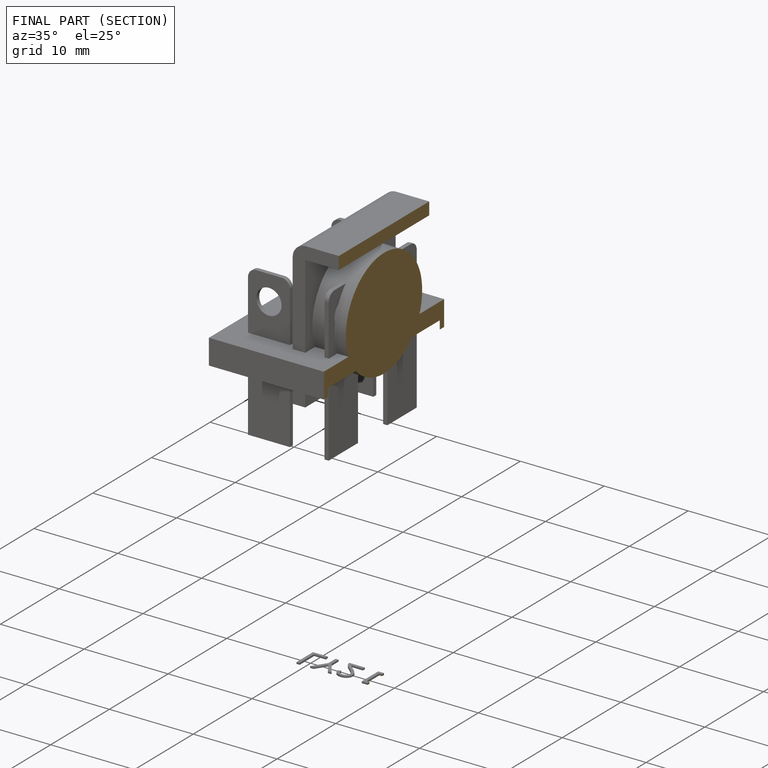
[diagram: finished part — half-section view (interior)]
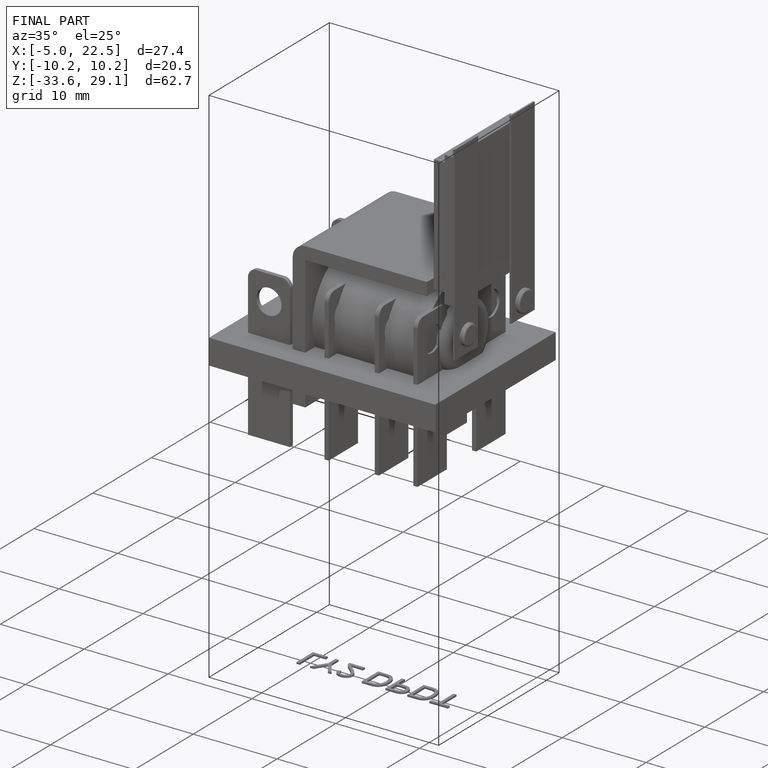
[diagram: finished part — iso view with bounding-box wireframe]
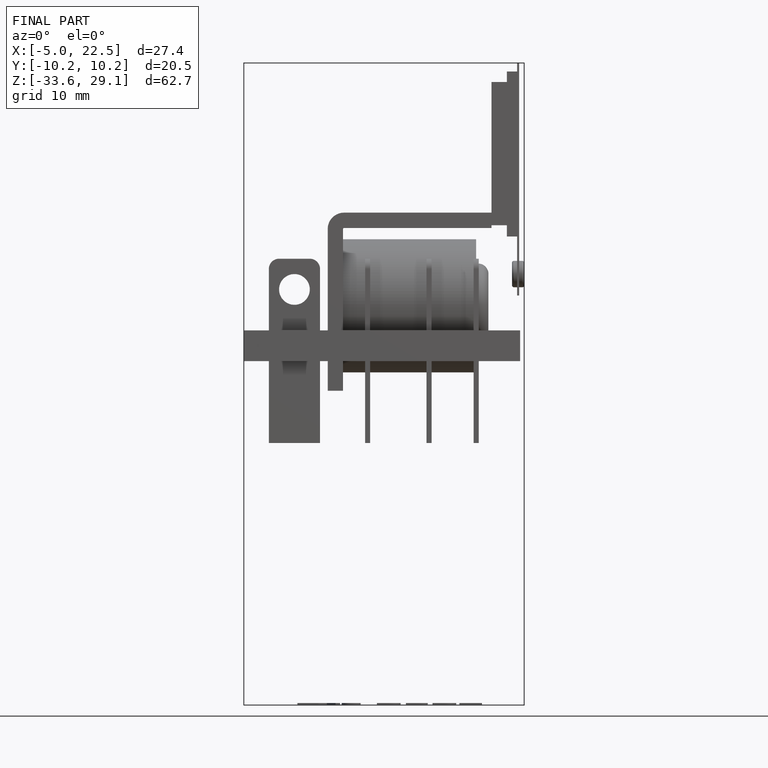
[diagram: finished part — front view with bounding-box wireframe]
